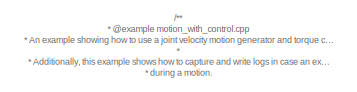
[diagram: root canvas - part 1/2, top center region]
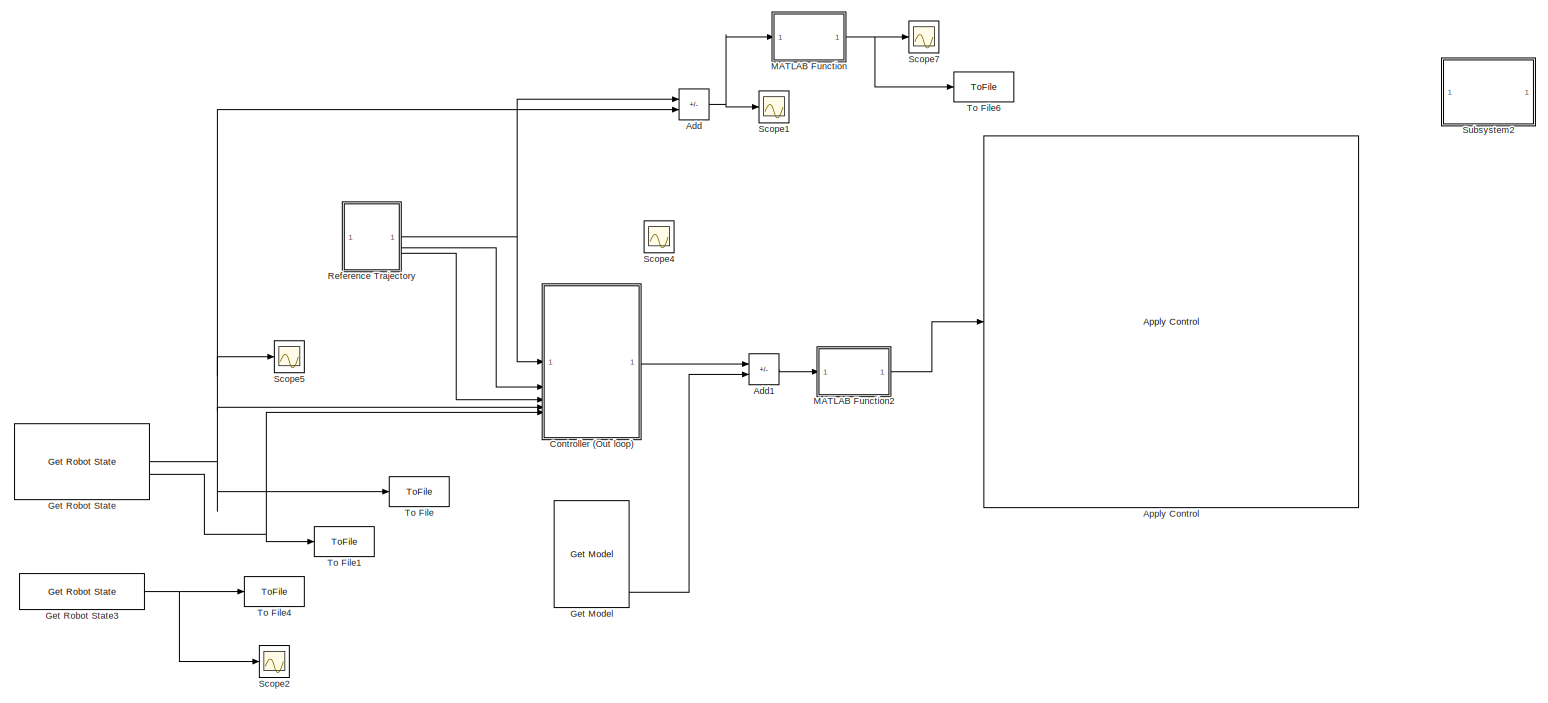
[diagram: root canvas - part 2/2, full width, middle band]
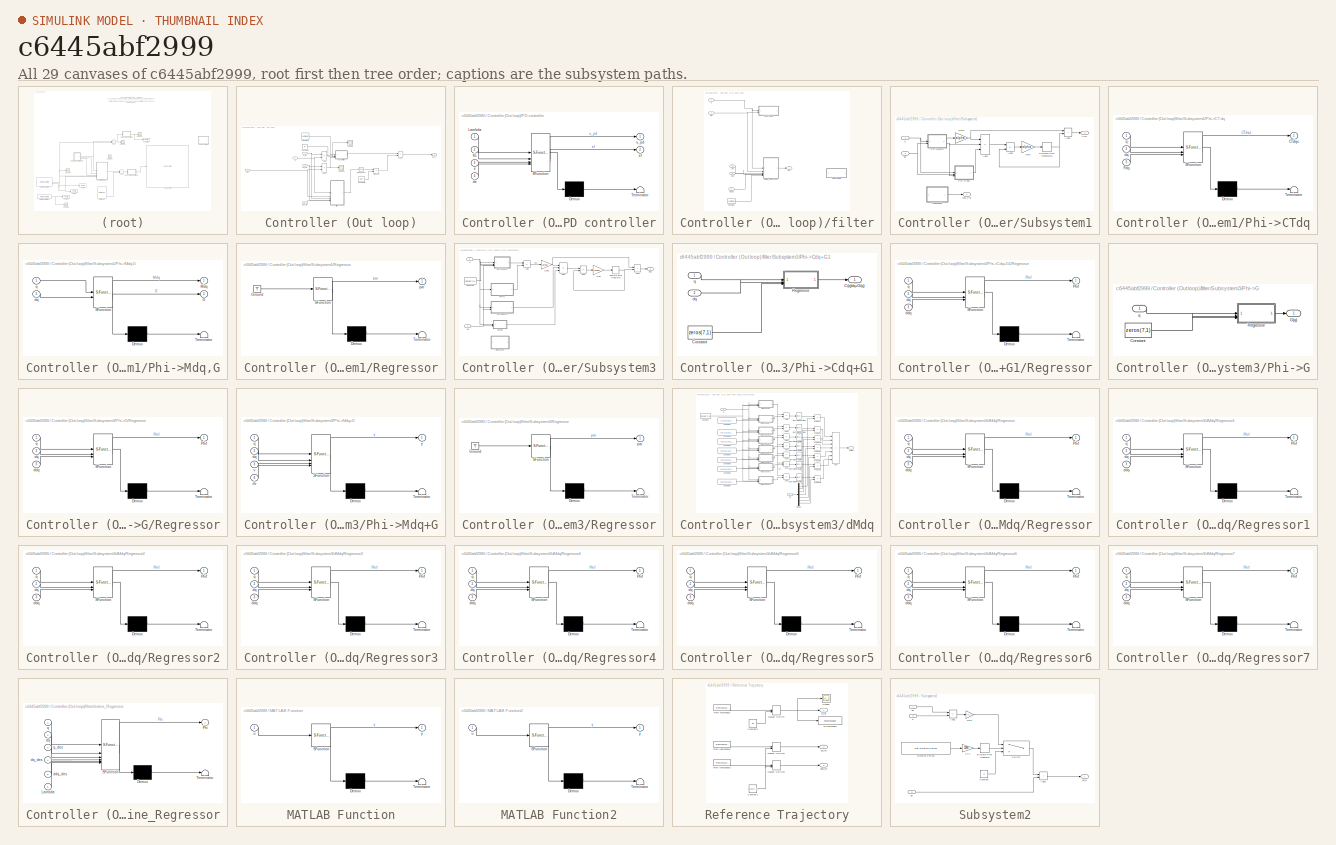
[diagram: thumbnail index - all 29 canvases of the model, root first then tree order]
MODEL mdl_c6445abf2999
KIND model
CONFIG AbsTol = auto
CONFIG EnableMultiTasking = on
CONFIG FixedStep = 0.001
CONFIG MaxStep = auto
CONFIG MinStep = auto
CONFIG PreLoadFcn = set_param(gcs, 'RTWSystemTargetFile', 'franka_emika_panda.tlc');\ndemos_common_configs();
CONFIG RelTol = 1e-3
CONFIG SampleTimeConstraint = Unconstrained
CONFIG SolverName = FixedStepDiscrete
CONFIG StartTime = 0.0
CONFIG StopTime = inf
BLOCK [Sum] Add
  IconShape = rectangular
  Inputs = +-
BLOCK [Sum] Add1
  IconShape = rectangular
  Inputs = +-
BLOCK [Reference] Apply Control  REF=franka_simulink_library/Apply Control
  SourceBlock = franka_simulink_library/Apply Control
  UserDataPersistent = on
BLOCK [SubSystem] Controller (Out loop)
BLOCK [Sum] Controller (Out loop)/Add
  IconShape = rectangular
  Inputs = +-
BLOCK [Sum] Controller (Out loop)/Add1
  IconShape = rectangular
  Inputs = +-
BLOCK [Sum] Controller (Out loop)/Add2
  IconShape = rectangular
BLOCK [Constant] Controller (Out loop)/Constant1
  Value = Lambda
BLOCK [Constant] Controller (Out loop)/Constant2
  Value = Kc
BLOCK [Constant] Controller (Out loop)/Constant3
  Value = par
BLOCK [SubSystem] Controller (Out loop)/PD controller
  ErrorFcn = Stateflow.Translate.translate
  PermitHierarchicalResolution = ExplicitOnly
  SFBlockType = MATLAB Function
  TreatAsAtomicUnit = on
BLOCK [Demux] Controller (Out loop)/PD controller/ Demux 
  Outputs = 1
BLOCK [S-Function] Controller (Out loop)/PD controller/ SFunction 
  EnableBusSupport = off
  FunctionName = sf_sfun
  PortCounts = [4 3]
  SFcnIsStateOwnerBlock = off
  SFunctionDeploymentMode = off
  Tag = Stateflow S-Function 1
BLOCK [Terminator] Controller (Out loop)/PD controller/ Terminator 
BLOCK [Inport] Controller (Out loop)/PD controller/Kc
  Port = 2
BLOCK [Inport] Controller (Out loop)/PD controller/Lambda
BLOCK [Inport] Controller (Out loop)/PD controller/de
  Port = 4
BLOCK [Inport] Controller (Out loop)/PD controller/e
  Port = 3
BLOCK [Outport] Controller (Out loop)/PD controller/ef
  Port = 2
BLOCK [Outport] Controller (Out loop)/PD controller/u_pd
BLOCK [Product] Controller (Out loop)/Product4
  Multiplication = Matrix(*)
BLOCK [Scope] Controller (Out loop)/Scope3
  Floating = off
  NumInputPorts = 1
  ScopeSpecificationString = Simulink.scopes.TimeScopeBlockCfg('CurrentConfiguration', extmgr.ConfigurationSet(extmgr.Configuration('Core','General UI',true),extmgr.Configuration('Core','Source UI',true),extmgr.Configuration('Sources','WiredSimulink',true,'DataLoggingVariableName','ScopeData8'),extmgr.Configuration('Visuals','Time Domain',true,'SerializedDisplays',{struct('MinYLimReal','-0.51521','MaxYLimReal','0.72811','YLab...<+1611ch>
BLOCK [Scope] Controller (Out loop)/Scope6
  Floating = off
  NumInputPorts = 1
  ScopeSpecificationString = Simulink.scopes.TimeScopeBlockCfg('CurrentConfiguration', extmgr.ConfigurationSet(extmgr.Configuration('Core','General UI',true),extmgr.Configuration('Core','Source UI',true),extmgr.Configuration('Sources','WiredSimulink',true,'DataLoggingVariableName','ScopeData7'),extmgr.Configuration('Visuals','Time Domain',true,'SerializedDisplays',{struct('MinYLimReal','-2.71875','MaxYLimReal','1.96875','YLab...<+1604ch>
BLOCK [Math] Controller (Out loop)/Transpose1
  Operator = transpose
BLOCK [Inport] Controller (Out loop)/ddq_ref
  Port = 3
BLOCK [Inport] Controller (Out loop)/dq
  Port = 5
BLOCK [Inport] Controller (Out loop)/dq_ref
  Port = 2
BLOCK [SubSystem] Controller (Out loop)/filter
BLOCK [Constant] Controller (Out loop)/filter/Constant
  Value = Lambda
BLOCK [Outport] Controller (Out loop)/filter/Phi
BLOCK [SubSystem] Controller (Out loop)/filter/Subsystem1
  Commented = on
BLOCK [Sum] Controller (Out loop)/filter/Subsystem1/Add2
  IconShape = rectangular
BLOCK [Sum] Controller (Out loop)/filter/Subsystem1/Add3
  IconShape = rectangular
  Inputs = ++-
BLOCK [Sum] Controller (Out loop)/filter/Subsystem1/Add4
  IconShape = rectangular
  Inputs = -+-
BLOCK [DiscreteIntegrator] Controller (Out loop)/filter/Subsystem1/Discrete-Time Integrator5
  ICPrevOutput = DiscIntNeverNeededParam
  ICPrevScaledInput = DiscIntNeverNeededParam
  InitialConditionSetting = Auto
  SampleTime = -1
BLOCK [Gain] Controller (Out loop)/filter/Subsystem1/Gain
  Gain = alpha
BLOCK [Gain] Controller (Out loop)/filter/Subsystem1/Gain1
  Gain = alpha
BLOCK [SubSystem] Controller (Out loop)/filter/Subsystem1/Phi->CTdq
  ErrorFcn = Stateflow.Translate.translate
  PermitHierarchicalResolution = ExplicitOnly
  SFBlockType = MATLAB Function
  TreatAsAtomicUnit = on
BLOCK [Demux] Controller (Out loop)/filter/Subsystem1/Phi->CTdq/ Demux 
  Outputs = 1
BLOCK [S-Function] Controller (Out loop)/filter/Subsystem1/Phi->CTdq/ SFunction 
  EnableBusSupport = off
  FunctionName = sf_sfun
  PortCounts = [3 2]
  SFcnIsStateOwnerBlock = off
  SFunctionDeploymentMode = off
  Tag = Stateflow S-Function 7
BLOCK [Terminator] Controller (Out loop)/filter/Subsystem1/Phi->CTdq/ Terminator 
BLOCK [Outport] Controller (Out loop)/filter/Subsystem1/Phi->CTdq/CTdqs
BLOCK [Inport] Controller (Out loop)/filter/Subsystem1/Phi->CTdq/Fdq
  Port = 3
BLOCK [Inport] Controller (Out loop)/filter/Subsystem1/Phi->CTdq/dq
  Port = 2
BLOCK [Inport] Controller (Out loop)/filter/Subsystem1/Phi->CTdq/q
BLOCK [SubSystem] Controller (Out loop)/filter/Subsystem1/Phi->Mdq,G
  ErrorFcn = Stateflow.Translate.translate
  PermitHierarchicalResolution = ExplicitOnly
  SFBlockType = MATLAB Function
  TreatAsAtomicUnit = on
BLOCK [Demux] Controller (Out loop)/filter/Subsystem1/Phi->Mdq,G/ Demux 
  Outputs = 1
BLOCK [S-Function] Controller (Out loop)/filter/Subsystem1/Phi->Mdq,G/ SFunction 
  EnableBusSupport = off
  FunctionName = sf_sfun
  PortCounts = [2 3]
  SFcnIsStateOwnerBlock = off
  SFunctionDeploymentMode = off
  Tag = Stateflow S-Function 8
BLOCK [Terminator] Controller (Out loop)/filter/Subsystem1/Phi->Mdq,G/ Terminator 
BLOCK [Outport] Controller (Out loop)/filter/Subsystem1/Phi->Mdq,G/G
  Port = 2
BLOCK [Outport] Controller (Out loop)/filter/Subsystem1/Phi->Mdq,G/Mdq
BLOCK [Inport] Controller (Out loop)/filter/Subsystem1/Phi->Mdq,G/dq
  Port = 2
BLOCK [Inport] Controller (Out loop)/filter/Subsystem1/Phi->Mdq,G/q
BLOCK [Outport] Controller (Out loop)/filter/Subsystem1/Phif
BLOCK [SubSystem] Controller (Out loop)/filter/Subsystem1/Regressor
  ErrorFcn = Stateflow.Translate.translate
  PermitHierarchicalResolution = ExplicitOnly
  SFBlockType = MATLAB Function
  TreatAsAtomicUnit = on
BLOCK [Demux] Controller (Out loop)/filter/Subsystem1/Regressor/ Demux 
  Outputs = 1
BLOCK [Ground] Controller (Out loop)/filter/Subsystem1/Regressor/ Ground 
BLOCK [S-Function] Controller (Out loop)/filter/Subsystem1/Regressor/ SFunction 
  EnableBusSupport = off
  FunctionName = sf_sfun
  PortCounts = [1 2]
  SFcnIsStateOwnerBlock = off
  SFunctionDeploymentMode = off
  Tag = Stateflow S-Function 10
BLOCK [Terminator] Controller (Out loop)/filter/Subsystem1/Regressor/ Terminator 
BLOCK [Outport] Controller (Out loop)/filter/Subsystem1/Regressor/par
BLOCK [Inport] Controller (Out loop)/filter/Subsystem1/dq
  Port = 2
BLOCK [Inport] Controller (Out loop)/filter/Subsystem1/q
BLOCK [Outport] Controller (Out loop)/filter/Subsystem1/real_Par
  Port = 2
BLOCK [SubSystem] Controller (Out loop)/filter/Subsystem3
  Commented = on
BLOCK [Sum] Controller (Out loop)/filter/Subsystem3/Add
  IconShape = rectangular
  Inputs = +-
BLOCK [Sum] Controller (Out loop)/filter/Subsystem3/Add1
  IconShape = rectangular
  Inputs = -+-
BLOCK [Sum] Controller (Out loop)/filter/Subsystem3/Add2
  IconShape = rectangular
BLOCK [Sum] Controller (Out loop)/filter/Subsystem3/Add3
  IconShape = rectangular
  Inputs = +-
BLOCK [Constant] Controller (Out loop)/filter/Subsystem3/Constant
  Value = zeros(7,1)
BLOCK [DiscreteIntegrator] Controller (Out loop)/filter/Subsystem3/Discrete-Time Integrator
  ICPrevOutput = DiscIntNeverNeededParam
  ICPrevScaledInput = DiscIntNeverNeededParam
  InitialConditionSetting = Auto
  SampleTime = Ts
BLOCK [Gain] Controller (Out loop)/filter/Subsystem3/Gain
  Gain = alpha
BLOCK [Gain] Controller (Out loop)/filter/Subsystem3/Gain2
  Gain = alpha
BLOCK [SubSystem] Controller (Out loop)/filter/Subsystem3/Phi->Cdq+G1
BLOCK [Outport] Controller (Out loop)/filter/Subsystem3/Phi->Cdq+G1/C(q)dq+G(q)
BLOCK [Constant] Controller (Out loop)/filter/Subsystem3/Phi->Cdq+G1/Constant
  Value = zeros(7,1)
BLOCK [SubSystem] Controller (Out loop)/filter/Subsystem3/Phi->Cdq+G1/Regressor
  ErrorFcn = Stateflow.Translate.translate
  PermitHierarchicalResolution = ExplicitOnly
  SFBlockType = MATLAB Function
  TreatAsAtomicUnit = on
BLOCK [Demux] Controller (Out loop)/filter/Subsystem3/Phi->Cdq+G1/Regressor/ Demux 
  Outputs = 1
BLOCK [S-Function] Controller (Out loop)/filter/Subsystem3/Phi->Cdq+G1/Regressor/ SFunction 
  EnableBusSupport = off
  FunctionName = sf_sfun
  PortCounts = [3 2]
  SFcnIsStateOwnerBlock = off
  SFunctionDeploymentMode = off
  Tag = Stateflow S-Function 41
BLOCK [Terminator] Controller (Out loop)/filter/Subsystem3/Phi->Cdq+G1/Regressor/ Terminator 
BLOCK [Outport] Controller (Out loop)/filter/Subsystem3/Phi->Cdq+G1/Regressor/Phif
BLOCK [Inport] Controller (Out loop)/filter/Subsystem3/Phi->Cdq+G1/Regressor/ddq
  Port = 3
BLOCK [Inport] Controller (Out loop)/filter/Subsystem3/Phi->Cdq+G1/Regressor/dq
  Port = 2
BLOCK [Inport] Controller (Out loop)/filter/Subsystem3/Phi->Cdq+G1/Regressor/q
BLOCK [Inport] Controller (Out loop)/filter/Subsystem3/Phi->Cdq+G1/dq
  Port = 2
BLOCK [Inport] Controller (Out loop)/filter/Subsystem3/Phi->Cdq+G1/q
BLOCK [SubSystem] Controller (Out loop)/filter/Subsystem3/Phi->G
BLOCK [Constant] Controller (Out loop)/filter/Subsystem3/Phi->G/Constant
  Value = zeros(7,1)
BLOCK [Outport] Controller (Out loop)/filter/Subsystem3/Phi->G/G(q)
BLOCK [SubSystem] Controller (Out loop)/filter/Subsystem3/Phi->G/Regressor
  ErrorFcn = Stateflow.Translate.translate
  PermitHierarchicalResolution = ExplicitOnly
  SFBlockType = MATLAB Function
  TreatAsAtomicUnit = on
BLOCK [Demux] Controller (Out loop)/filter/Subsystem3/Phi->G/Regressor/ Demux 
  Outputs = 1
BLOCK [S-Function] Controller (Out loop)/filter/Subsystem3/Phi->G/Regressor/ SFunction 
  EnableBusSupport = off
  FunctionName = sf_sfun
  PortCounts = [3 2]
  SFcnIsStateOwnerBlock = off
  SFunctionDeploymentMode = off
  Tag = Stateflow S-Function 42
BLOCK [Terminator] Controller (Out loop)/filter/Subsystem3/Phi->G/Regressor/ Terminator 
BLOCK [Outport] Controller (Out loop)/filter/Subsystem3/Phi->G/Regressor/Phif
BLOCK [Inport] Controller (Out loop)/filter/Subsystem3/Phi->G/Regressor/ddq
  Port = 3
BLOCK [Inport] Controller (Out loop)/filter/Subsystem3/Phi->G/Regressor/dq
  Port = 2
BLOCK [Inport] Controller (Out loop)/filter/Subsystem3/Phi->G/Regressor/q
BLOCK [Inport] Controller (Out loop)/filter/Subsystem3/Phi->G/q
BLOCK [SubSystem] Controller (Out loop)/filter/Subsystem3/Phi->Mdq+G
  ErrorFcn = Stateflow.Translate.translate
  PermitHierarchicalResolution = ExplicitOnly
  SFBlockType = MATLAB Function
  TreatAsAtomicUnit = on
BLOCK [Demux] Controller (Out loop)/filter/Subsystem3/Phi->Mdq+G/ Demux 
  Outputs = 1
BLOCK [S-Function] Controller (Out loop)/filter/Subsystem3/Phi->Mdq+G/ SFunction 
  EnableBusSupport = off
  FunctionName = sf_sfun
  PortCounts = [4 2]
  SFcnIsStateOwnerBlock = off
  SFunctionDeploymentMode = off
  Tag = Stateflow S-Function 71
BLOCK [Terminator] Controller (Out loop)/filter/Subsystem3/Phi->Mdq+G/ Terminator 
BLOCK [Inport] Controller (Out loop)/filter/Subsystem3/Phi->Mdq+G/dq
  Port = 2
BLOCK [Inport] Controller (Out loop)/filter/Subsystem3/Phi->Mdq+G/dv
  Port = 4
BLOCK [Inport] Controller (Out loop)/filter/Subsystem3/Phi->Mdq+G/q
BLOCK [Inport] Controller (Out loop)/filter/Subsystem3/Phi->Mdq+G/v
  Port = 3
BLOCK [Outport] Controller (Out loop)/filter/Subsystem3/Phi->Mdq+G/y
BLOCK [Outport] Controller (Out loop)/filter/Subsystem3/Phif
BLOCK [SubSystem] Controller (Out loop)/filter/Subsystem3/Regressor
  Commented = on
  ErrorFcn = Stateflow.Translate.translate
  PermitHierarchicalResolution = ExplicitOnly
  SFBlockType = MATLAB Function
  TreatAsAtomicUnit = on
BLOCK [Demux] Controller (Out loop)/filter/Subsystem3/Regressor/ Demux 
  Outputs = 1
BLOCK [Ground] Controller (Out loop)/filter/Subsystem3/Regressor/ Ground 
BLOCK [S-Function] Controller (Out loop)/filter/Subsystem3/Regressor/ SFunction 
  EnableBusSupport = off
  FunctionName = sf_sfun
  PortCounts = [1 2]
  SFcnIsStateOwnerBlock = off
  SFunctionDeploymentMode = off
  Tag = Stateflow S-Function 47
BLOCK [Terminator] Controller (Out loop)/filter/Subsystem3/Regressor/ Terminator 
BLOCK [Outport] Controller (Out loop)/filter/Subsystem3/Regressor/par
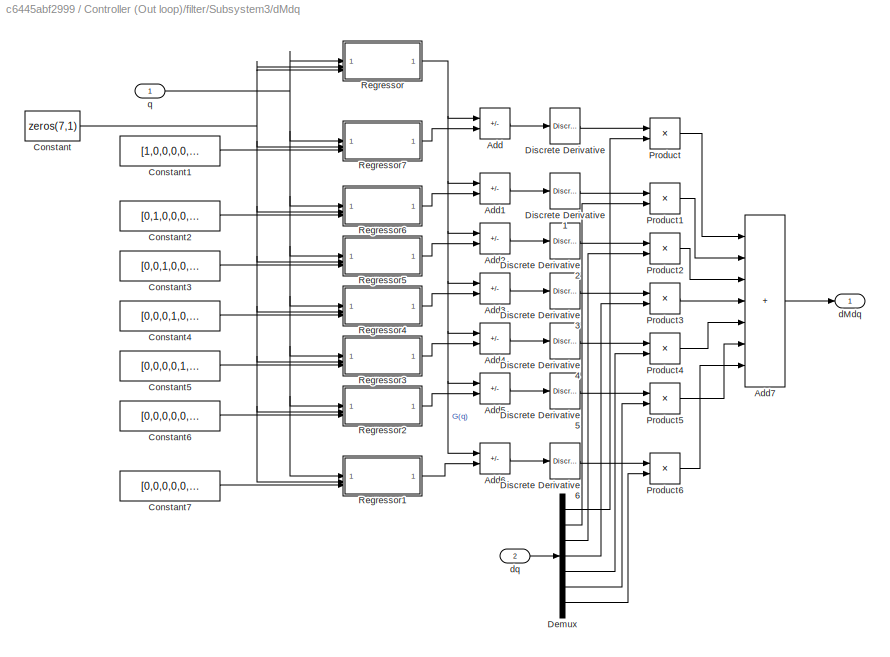
BLOCK [SubSystem] Controller (Out loop)/filter/Subsystem3/dMdq
BLOCK [Sum] Controller (Out loop)/filter/Subsystem3/dMdq/Add
  IconShape = rectangular
  Inputs = -+
BLOCK [Sum] Controller (Out loop)/filter/Subsystem3/dMdq/Add1
  IconShape = rectangular
  Inputs = -+
BLOCK [Sum] Controller (Out loop)/filter/Subsystem3/dMdq/Add2
  IconShape = rectangular
  Inputs = -+
BLOCK [Sum] Controller (Out loop)/filter/Subsystem3/dMdq/Add3
  IconShape = rectangular
  Inputs = -+
BLOCK [Sum] Controller (Out loop)/filter/Subsystem3/dMdq/Add4
  IconShape = rectangular
  Inputs = -+
BLOCK [Sum] Controller (Out loop)/filter/Subsystem3/dMdq/Add5
  IconShape = rectangular
  Inputs = -+
BLOCK [Sum] Controller (Out loop)/filter/Subsystem3/dMdq/Add6
  IconShape = rectangular
  Inputs = -+
BLOCK [Sum] Controller (Out loop)/filter/Subsystem3/dMdq/Add7
  IconShape = rectangular
  Inputs = +++++++
BLOCK [Constant] Controller (Out loop)/filter/Subsystem3/dMdq/Constant
  Value = zeros(7,1)
BLOCK [Constant] Controller (Out loop)/filter/Subsystem3/dMdq/Constant1
  Value = [1,0,0,0,0,0,0]'
BLOCK [Constant] Controller (Out loop)/filter/Subsystem3/dMdq/Constant2
  Value = [0,1,0,0,0,0,0]'
BLOCK [Constant] Controller (Out loop)/filter/Subsystem3/dMdq/Constant3
  Value = [0,0,1,0,0,0,0]'
BLOCK [Constant] Controller (Out loop)/filter/Subsystem3/dMdq/Constant4
  Value = [0,0,0,1,0,0,0]'
BLOCK [Constant] Controller (Out loop)/filter/Subsystem3/dMdq/Constant5
  Value = [0,0,0,0,1,0,0]'
BLOCK [Constant] Controller (Out loop)/filter/Subsystem3/dMdq/Constant6
  Value = [0,0,0,0,0,1,0]'
BLOCK [Constant] Controller (Out loop)/filter/Subsystem3/dMdq/Constant7
  Value = [0,0,0,0,0,0,1]'
BLOCK [Demux] Controller (Out loop)/filter/Subsystem3/dMdq/Demux
  Outputs = 7
BLOCK [Reference] Controller (Out loop)/filter/Subsystem3/dMdq/Discrete Derivative  REF=simulink/Discrete/Discrete Derivative
  SourceBlock = simulink/Discrete/Discrete Derivative
  SourceType = Discrete Derivative
BLOCK [Reference] Controller (Out loop)/filter/Subsystem3/dMdq/Discrete Derivative1  REF=simulink/Discrete/Discrete Derivative
  SourceBlock = simulink/Discrete/Discrete Derivative
  SourceType = Discrete Derivative
BLOCK [Reference] Controller (Out loop)/filter/Subsystem3/dMdq/Discrete Derivative2  REF=simulink/Discrete/Discrete Derivative
  SourceBlock = simulink/Discrete/Discrete Derivative
  SourceType = Discrete Derivative
BLOCK [Reference] Controller (Out loop)/filter/Subsystem3/dMdq/Discrete Derivative3  REF=simulink/Discrete/Discrete Derivative
  SourceBlock = simulink/Discrete/Discrete Derivative
  SourceType = Discrete Derivative
BLOCK [Reference] Controller (Out loop)/filter/Subsystem3/dMdq/Discrete Derivative4  REF=simulink/Discrete/Discrete Derivative
  SourceBlock = simulink/Discrete/Discrete Derivative
  SourceType = Discrete Derivative
BLOCK [Reference] Controller (Out loop)/filter/Subsystem3/dMdq/Discrete Derivative5  REF=simulink/Discrete/Discrete Derivative
  SourceBlock = simulink/Discrete/Discrete Derivative
  SourceType = Discrete Derivative
BLOCK [Reference] Controller (Out loop)/filter/Subsystem3/dMdq/Discrete Derivative6  REF=simulink/Discrete/Discrete Derivative
  SourceBlock = simulink/Discrete/Discrete Derivative
  SourceType = Discrete Derivative
BLOCK [Product] Controller (Out loop)/filter/Subsystem3/dMdq/Product
BLOCK [Product] Controller (Out loop)/filter/Subsystem3/dMdq/Product1
BLOCK [Product] Controller (Out loop)/filter/Subsystem3/dMdq/Product2
BLOCK [Product] Controller (Out loop)/filter/Subsystem3/dMdq/Product3
BLOCK [Product] Controller (Out loop)/filter/Subsystem3/dMdq/Product4
BLOCK [Product] Controller (Out loop)/filter/Subsystem3/dMdq/Product5
BLOCK [Product] Controller (Out loop)/filter/Subsystem3/dMdq/Product6
BLOCK [SubSystem] Controller (Out loop)/filter/Subsystem3/dMdq/Regressor
  ErrorFcn = Stateflow.Translate.translate
  PermitHierarchicalResolution = ExplicitOnly
  SFBlockType = MATLAB Function
  TreatAsAtomicUnit = on
BLOCK [Demux] Controller (Out loop)/filter/Subsystem3/dMdq/Regressor/ Demux 
  Outputs = 1
BLOCK [S-Function] Controller (Out loop)/filter/Subsystem3/dMdq/Regressor/ SFunction 
  EnableBusSupport = off
  FunctionName = sf_sfun
  PortCounts = [3 2]
  SFcnIsStateOwnerBlock = off
  SFunctionDeploymentMode = off
  Tag = Stateflow S-Function 63
BLOCK [Terminator] Controller (Out loop)/filter/Subsystem3/dMdq/Regressor/ Terminator 
BLOCK [Outport] Controller (Out loop)/filter/Subsystem3/dMdq/Regressor/Phif
BLOCK [Inport] Controller (Out loop)/filter/Subsystem3/dMdq/Regressor/ddq
  Port = 3
BLOCK [Inport] Controller (Out loop)/filter/Subsystem3/dMdq/Regressor/dq
  Port = 2
BLOCK [Inport] Controller (Out loop)/filter/Subsystem3/dMdq/Regressor/q
BLOCK [SubSystem] Controller (Out loop)/filter/Subsystem3/dMdq/Regressor1
  ErrorFcn = Stateflow.Translate.translate
  PermitHierarchicalResolution = ExplicitOnly
  SFBlockType = MATLAB Function
  TreatAsAtomicUnit = on
BLOCK [Demux] Controller (Out loop)/filter/Subsystem3/dMdq/Regressor1/ Demux 
  Outputs = 1
BLOCK [S-Function] Controller (Out loop)/filter/Subsystem3/dMdq/Regressor1/ SFunction 
  EnableBusSupport = off
  FunctionName = sf_sfun
  PortCounts = [3 2]
  SFcnIsStateOwnerBlock = off
  SFunctionDeploymentMode = off
  Tag = Stateflow S-Function 43
BLOCK [Terminator] Controller (Out loop)/filter/Subsystem3/dMdq/Regressor1/ Terminator 
BLOCK [Outport] Controller (Out loop)/filter/Subsystem3/dMdq/Regressor1/Phif
BLOCK [Inport] Controller (Out loop)/filter/Subsystem3/dMdq/Regressor1/ddq
  Port = 3
BLOCK [Inport] Controller (Out loop)/filter/Subsystem3/dMdq/Regressor1/dq
  Port = 2
BLOCK [Inport] Controller (Out loop)/filter/Subsystem3/dMdq/Regressor1/q
BLOCK [SubSystem] Controller (Out loop)/filter/Subsystem3/dMdq/Regressor2
  ErrorFcn = Stateflow.Translate.translate
  PermitHierarchicalResolution = ExplicitOnly
  SFBlockType = MATLAB Function
  TreatAsAtomicUnit = on
BLOCK [Demux] Controller (Out loop)/filter/Subsystem3/dMdq/Regressor2/ Demux 
  Outputs = 1
BLOCK [S-Function] Controller (Out loop)/filter/Subsystem3/dMdq/Regressor2/ SFunction 
  EnableBusSupport = off
  FunctionName = sf_sfun
  PortCounts = [3 2]
  SFcnIsStateOwnerBlock = off
  SFunctionDeploymentMode = off
  Tag = Stateflow S-Function 44
BLOCK [Terminator] Controller (Out loop)/filter/Subsystem3/dMdq/Regressor2/ Terminator 
BLOCK [Outport] Controller (Out loop)/filter/Subsystem3/dMdq/Regressor2/Phif
BLOCK [Inport] Controller (Out loop)/filter/Subsystem3/dMdq/Regressor2/ddq
  Port = 3
BLOCK [Inport] Controller (Out loop)/filter/Subsystem3/dMdq/Regressor2/dq
  Port = 2
BLOCK [Inport] Controller (Out loop)/filter/Subsystem3/dMdq/Regressor2/q
BLOCK [SubSystem] Controller (Out loop)/filter/Subsystem3/dMdq/Regressor3
  ErrorFcn = Stateflow.Translate.translate
  PermitHierarchicalResolution = ExplicitOnly
  SFBlockType = MATLAB Function
  TreatAsAtomicUnit = on
BLOCK [Demux] Controller (Out loop)/filter/Subsystem3/dMdq/Regressor3/ Demux 
  Outputs = 1
BLOCK [S-Function] Controller (Out loop)/filter/Subsystem3/dMdq/Regressor3/ SFunction 
  EnableBusSupport = off
  FunctionName = sf_sfun
  PortCounts = [3 2]
  SFcnIsStateOwnerBlock = off
  SFunctionDeploymentMode = off
  Tag = Stateflow S-Function 45
BLOCK [Terminator] Controller (Out loop)/filter/Subsystem3/dMdq/Regressor3/ Terminator 
BLOCK [Outport] Controller (Out loop)/filter/Subsystem3/dMdq/Regressor3/Phif
BLOCK [Inport] Controller (Out loop)/filter/Subsystem3/dMdq/Regressor3/ddq
  Port = 3
BLOCK [Inport] Controller (Out loop)/filter/Subsystem3/dMdq/Regressor3/dq
  Port = 2
BLOCK [Inport] Controller (Out loop)/filter/Subsystem3/dMdq/Regressor3/q
BLOCK [SubSystem] Controller (Out loop)/filter/Subsystem3/dMdq/Regressor4
  ErrorFcn = Stateflow.Translate.translate
  PermitHierarchicalResolution = ExplicitOnly
  SFBlockType = MATLAB Function
  TreatAsAtomicUnit = on
BLOCK [Demux] Controller (Out loop)/filter/Subsystem3/dMdq/Regressor4/ Demux 
  Outputs = 1
BLOCK [S-Function] Controller (Out loop)/filter/Subsystem3/dMdq/Regressor4/ SFunction 
  EnableBusSupport = off
  FunctionName = sf_sfun
  PortCounts = [3 2]
  SFcnIsStateOwnerBlock = off
  SFunctionDeploymentMode = off
  Tag = Stateflow S-Function 46
BLOCK [Terminator] Controller (Out loop)/filter/Subsystem3/dMdq/Regressor4/ Terminator 
BLOCK [Outport] Controller (Out loop)/filter/Subsystem3/dMdq/Regressor4/Phif
BLOCK [Inport] Controller (Out loop)/filter/Subsystem3/dMdq/Regressor4/ddq
  Port = 3
BLOCK [Inport] Controller (Out loop)/filter/Subsystem3/dMdq/Regressor4/dq
  Port = 2
BLOCK [Inport] Controller (Out loop)/filter/Subsystem3/dMdq/Regressor4/q
BLOCK [SubSystem] Controller (Out loop)/filter/Subsystem3/dMdq/Regressor5
  ErrorFcn = Stateflow.Translate.translate
  PermitHierarchicalResolution = ExplicitOnly
  SFBlockType = MATLAB Function
  TreatAsAtomicUnit = on
BLOCK [Demux] Controller (Out loop)/filter/Subsystem3/dMdq/Regressor5/ Demux 
  Outputs = 1
BLOCK [S-Function] Controller (Out loop)/filter/Subsystem3/dMdq/Regressor5/ SFunction 
  EnableBusSupport = off
  FunctionName = sf_sfun
  PortCounts = [3 2]
  SFcnIsStateOwnerBlock = off
  SFunctionDeploymentMode = off
  Tag = Stateflow S-Function 64
BLOCK [Terminator] Controller (Out loop)/filter/Subsystem3/dMdq/Regressor5/ Terminator 
BLOCK [Outport] Controller (Out loop)/filter/Subsystem3/dMdq/Regressor5/Phif
BLOCK [Inport] Controller (Out loop)/filter/Subsystem3/dMdq/Regressor5/ddq
  Port = 3
BLOCK [Inport] Controller (Out loop)/filter/Subsystem3/dMdq/Regressor5/dq
  Port = 2
BLOCK [Inport] Controller (Out loop)/filter/Subsystem3/dMdq/Regressor5/q
BLOCK [SubSystem] Controller (Out loop)/filter/Subsystem3/dMdq/Regressor6
  ErrorFcn = Stateflow.Translate.translate
  PermitHierarchicalResolution = ExplicitOnly
  SFBlockType = MATLAB Function
  TreatAsAtomicUnit = on
BLOCK [Demux] Controller (Out loop)/filter/Subsystem3/dMdq/Regressor6/ Demux 
  Outputs = 1
BLOCK [S-Function] Controller (Out loop)/filter/Subsystem3/dMdq/Regressor6/ SFunction 
  EnableBusSupport = off
  FunctionName = sf_sfun
  PortCounts = [3 2]
  SFcnIsStateOwnerBlock = off
  SFunctionDeploymentMode = off
  Tag = Stateflow S-Function 65
BLOCK [Terminator] Controller (Out loop)/filter/Subsystem3/dMdq/Regressor6/ Terminator 
BLOCK [Outport] Controller (Out loop)/filter/Subsystem3/dMdq/Regressor6/Phif
BLOCK [Inport] Controller (Out loop)/filter/Subsystem3/dMdq/Regressor6/ddq
  Port = 3
BLOCK [Inport] Controller (Out loop)/filter/Subsystem3/dMdq/Regressor6/dq
  Port = 2
BLOCK [Inport] Controller (Out loop)/filter/Subsystem3/dMdq/Regressor6/q
BLOCK [SubSystem] Controller (Out loop)/filter/Subsystem3/dMdq/Regressor7
  ErrorFcn = Stateflow.Translate.translate
  PermitHierarchicalResolution = ExplicitOnly
  SFBlockType = MATLAB Function
  TreatAsAtomicUnit = on
BLOCK [Demux] Controller (Out loop)/filter/Subsystem3/dMdq/Regressor7/ Demux 
  Outputs = 1
BLOCK [S-Function] Controller (Out loop)/filter/Subsystem3/dMdq/Regressor7/ SFunction 
  EnableBusSupport = off
  FunctionName = sf_sfun
  PortCounts = [3 2]
  SFcnIsStateOwnerBlock = off
  SFunctionDeploymentMode = off
  Tag = Stateflow S-Function 66
BLOCK [Terminator] Controller (Out loop)/filter/Subsystem3/dMdq/Regressor7/ Terminator 
BLOCK [Outport] Controller (Out loop)/filter/Subsystem3/dMdq/Regressor7/Phif
BLOCK [Inport] Controller (Out loop)/filter/Subsystem3/dMdq/Regressor7/ddq
  Port = 3
BLOCK [Inport] Controller (Out loop)/filter/Subsystem3/dMdq/Regressor7/dq
  Port = 2
BLOCK [Inport] Controller (Out loop)/filter/Subsystem3/dMdq/Regressor7/q
BLOCK [Outport] Controller (Out loop)/filter/Subsystem3/dMdq/dMdq
BLOCK [Inport] Controller (Out loop)/filter/Subsystem3/dMdq/dq
  Port = 2
BLOCK [Inport] Controller (Out loop)/filter/Subsystem3/dMdq/q
BLOCK [Inport] Controller (Out loop)/filter/Subsystem3/dq
  Port = 2
BLOCK [Inport] Controller (Out loop)/filter/Subsystem3/q
BLOCK [Inport] Controller (Out loop)/filter/ddqd
  Port = 5
BLOCK [Inport] Controller (Out loop)/filter/dq
  Port = 2
BLOCK [Inport] Controller (Out loop)/filter/dqd
  Port = 4
BLOCK [Inport] Controller (Out loop)/filter/q
BLOCK [Inport] Controller (Out loop)/filter/qd
  Port = 3
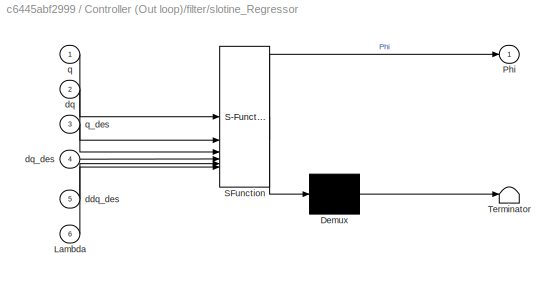
BLOCK [SubSystem] Controller (Out loop)/filter/slotine_Regressor
  ErrorFcn = Stateflow.Translate.translate
  PermitHierarchicalResolution = ExplicitOnly
  SFBlockType = MATLAB Function
  TreatAsAtomicUnit = on
BLOCK [Demux] Controller (Out loop)/filter/slotine_Regressor/ Demux 
  Outputs = 1
BLOCK [S-Function] Controller (Out loop)/filter/slotine_Regressor/ SFunction 
  EnableBusSupport = off
  FunctionName = sf_sfun
  PortCounts = [6 2]
  SFcnIsStateOwnerBlock = off
  SFunctionDeploymentMode = off
  Tag = Stateflow S-Function 6
BLOCK [Terminator] Controller (Out loop)/filter/slotine_Regressor/ Terminator 
BLOCK [Inport] Controller (Out loop)/filter/slotine_Regressor/Lambda
  Port = 6
BLOCK [Outport] Controller (Out loop)/filter/slotine_Regressor/Phi
BLOCK [Inport] Controller (Out loop)/filter/slotine_Regressor/ddq_des
  Port = 5
BLOCK [Inport] Controller (Out loop)/filter/slotine_Regressor/dq
  Port = 2
BLOCK [Inport] Controller (Out loop)/filter/slotine_Regressor/dq_des
  Port = 4
BLOCK [Inport] Controller (Out loop)/filter/slotine_Regressor/q
BLOCK [Inport] Controller (Out loop)/filter/slotine_Regressor/q_des
  Port = 3
BLOCK [Inport] Controller (Out loop)/q
  Port = 4
BLOCK [Inport] Controller (Out loop)/q_ref
BLOCK [Outport] Controller (Out loop)/tau_r
BLOCK [Reference] Get Model  REF=franka_simulink_library/Get Model
  SourceBlock = franka_simulink_library/Get Model
BLOCK [Reference] Get Robot State  REF=franka_simulink_library/Get Robot State
  SourceBlock = franka_simulink_library/Get Robot State
BLOCK [Reference] Get Robot State3  REF=franka_simulink_library/Get Robot State
  SourceBlock = franka_simulink_library/Get Robot State
BLOCK [SubSystem] MATLAB Function
  ErrorFcn = Stateflow.Translate.translate
  PermitHierarchicalResolution = ExplicitOnly
  SFBlockType = MATLAB Function
  TreatAsAtomicUnit = on
BLOCK [Demux] MATLAB Function/ Demux 
  Outputs = 1
BLOCK [S-Function] MATLAB Function/ SFunction 
  EnableBusSupport = off
  FunctionName = sf_sfun
  PortCounts = [1 2]
  SFcnIsStateOwnerBlock = off
  SFunctionDeploymentMode = off
  Tag = Stateflow S-Function 2
BLOCK [Terminator] MATLAB Function/ Terminator 
BLOCK [Inport] MATLAB Function/u
BLOCK [Outport] MATLAB Function/y
BLOCK [SubSystem] MATLAB Function2
  ErrorFcn = Stateflow.Translate.translate
  PermitHierarchicalResolution = ExplicitOnly
  SFBlockType = MATLAB Function
  TreatAsAtomicUnit = on
BLOCK [Demux] MATLAB Function2/ Demux 
  Outputs = 1
BLOCK [S-Function] MATLAB Function2/ SFunction 
  EnableBusSupport = off
  FunctionName = sf_sfun
  PortCounts = [1 2]
  SFcnIsStateOwnerBlock = off
  SFunctionDeploymentMode = off
  Tag = Stateflow S-Function 4
BLOCK [Terminator] MATLAB Function2/ Terminator 
BLOCK [Inport] MATLAB Function2/u
BLOCK [Outport] MATLAB Function2/y
BLOCK [SubSystem] Reference Trajectory
BLOCK [Constant] Reference Trajectory/Constant1
  Value = zeros(7,1)
BLOCK [Constant] Reference Trajectory/Constant2
  Value = q0
BLOCK [FromWorkspace] Reference Trajectory/From Workspace
  VariableName = traj.qd
BLOCK [FromWorkspace] Reference Trajectory/From Workspace1
  VariableName = traj.dqd
BLOCK [FromWorkspace] Reference Trajectory/From Workspace2
  VariableName = traj.ddqd
BLOCK [ManualSwitch] Reference Trajectory/Manual Switch
BLOCK [ManualSwitch] Reference Trajectory/Manual Switch1
BLOCK [ManualSwitch] Reference Trajectory/Manual Switch2
BLOCK [Scope] Reference Trajectory/Scope2
  Floating = off
  NumInputPorts = 1
  ScopeSpecificationString = Simulink.scopes.TimeScopeBlockCfg('CurrentConfiguration', extmgr.ConfigurationSet(extmgr.Configuration('Core','General UI',true),extmgr.Configuration('Core','Source UI',true),extmgr.Configuration('Sources','WiredSimulink',true,'DataLoggingVariableName','ScopeData1'),extmgr.Configuration('Visuals','Time Domain',true,'SerializedDisplays',{struct('MinYLimReal','-4.38608','MaxYLimReal','4.40486','YLab...<+1675ch>
BLOCK [ToWorkspace] Reference Trajectory/To Workspace
  Commented = on
  FixptAsFi = on
  MaxDataPoints = inf
  SampleTime = -1
  SaveFormat = Timeseries
  VariableName = q_ref
BLOCK [Outport] Reference Trajectory/ddq_ref
  Port = 3
BLOCK [Outport] Reference Trajectory/dq_ref
  Port = 2
BLOCK [Outport] Reference Trajectory/q_ref
BLOCK [Scope] Scope1
  Floating = off
  NumInputPorts = 1
  ScopeSpecificationString = Simulink.scopes.TimeScopeBlockCfg('CurrentConfiguration', extmgr.ConfigurationSet(extmgr.Configuration('Core','General UI',true),extmgr.Configuration('Core','Source UI',true),extmgr.Configuration('Sources','WiredSimulink',true,'DataLoggingVariableName','ScopeData1','DataLoggingSaveFormat','StructureWithTime','DataLoggingMaxPoints','25000'),extmgr.Configuration('Visuals','Time Domain',true,'Seriali...<+1560ch>
BLOCK [Scope] Scope2
  Floating = off
  NumInputPorts = 1
  ScopeSpecificationString = Simulink.scopes.TimeScopeBlockCfg('CurrentConfiguration', extmgr.ConfigurationSet(extmgr.Configuration('Core','General UI',true),extmgr.Configuration('Core','Source UI',true),extmgr.Configuration('Sources','WiredSimulink',true,'DataLoggingVariableName','ScopeData2','DataLoggingSaveFormat','StructureWithTime','DataLoggingMaxPoints','25000'),extmgr.Configuration('Visuals','Time Domain',true,'Seriali...<+1657ch>
BLOCK [Scope] Scope4
  Floating = off
  NumInputPorts = 1
  ScopeSpecificationString = Simulink.scopes.TimeScopeBlockCfg('CurrentConfiguration', extmgr.ConfigurationSet(extmgr.Configuration('Core','General UI',true),extmgr.Configuration('Core','Source UI',true),extmgr.Configuration('Sources','WiredSimulink',true,'DataLoggingVariableName','ScopeData3','DataLoggingSaveFormat','StructureWithTime','DataLoggingMaxPoints','25000'),extmgr.Configuration('Visuals','Time Domain',true,'Seriali...<+1707ch>
BLOCK [Scope] Scope5
  Floating = off
  NumInputPorts = 1
  ScopeSpecificationString = Simulink.scopes.TimeScopeBlockCfg('CurrentConfiguration', extmgr.ConfigurationSet(extmgr.Configuration('Core','General UI',true),extmgr.Configuration('Core','Source UI',true),extmgr.Configuration('Sources','WiredSimulink',true,'DataLoggingVariableName','ScopeData4','DataLoggingSaveFormat','StructureWithTime','DataLoggingMaxPoints','25000'),extmgr.Configuration('Visuals','Time Domain',true,'Seriali...<+1654ch>
BLOCK [Scope] Scope7
  Floating = off
  NumInputPorts = 1
  ScopeSpecificationString = Simulink.scopes.TimeScopeBlockCfg('CurrentConfiguration', extmgr.ConfigurationSet(extmgr.Configuration('Core','General UI',true),extmgr.Configuration('Core','Source UI',true),extmgr.Configuration('Sources','WiredSimulink',true,'DataLoggingVariableName','ScopeData5','DataLoggingSaveFormat','StructureWithTime','DataLoggingMaxPoints','25000'),extmgr.Configuration('Visuals','Time Domain',true,'Seriali...<+1514ch>
BLOCK [SubSystem] Subsystem2
  Commented = on
BLOCK [Sum] Subsystem2/Add1
  IconShape = rectangular
  Inputs = +-
BLOCK [Sum] Subsystem2/Add2
  IconShape = rectangular
BLOCK [Constant] Subsystem2/Constant
  Value = 0
BLOCK [DiscreteIntegrator] Subsystem2/Discrete-Time Integrator
  ICPrevOutput = DiscIntNeverNeededParam
  ICPrevScaledInput = DiscIntNeverNeededParam
  SampleTime = -1
BLOCK [Reference] Subsystem2/Duration Period  REF=franka_simulink_library/Get Duration Period
  SourceBlock = franka_simulink_library/Get Duration Period
BLOCK [Gain] Subsystem2/Gain
  Gain = 0.2
BLOCK [Gain] Subsystem2/KP1
  Gain = 1000
BLOCK [Switch] Subsystem2/Switch
  Criteria = u2 > Threshold
  InputSameDT = off
  SaturateOnIntegerOverflow = off
  Threshold = 0.05
BLOCK [Inport] Subsystem2/dq
  Port = 3
BLOCK [Outport] Subsystem2/dq_d
BLOCK [Inport] Subsystem2/q
  Port = 2
BLOCK [Inport] Subsystem2/qd
BLOCK [ToFile] To File
  Filename = q.mat
  MatrixName = q
BLOCK [ToFile] To File1
  Filename = dq.mat
  MatrixName = dq
BLOCK [ToFile] To File4
  Filename = tau_a.mat
  MatrixName = tau_a
BLOCK [ToFile] To File6
  Filename = err_norm.mat
  MatrixName = err_norm
ANNOTATION (root): /** * @example motion_with_control.cpp * An example showing how to use a joint velocity motion generator and torque control. * * Additionally, this example shows how to capture and write logs in case an exception is thrown * during a motion. * * @warning Before executing this example, make sure there is enough space in front of the robot. */
LINE Add1:1 -> MATLAB Function2:1
NET Add:1 -> MATLAB Function:1, Scope1:1
NET Controller (Out loop)/Add1:1 -> Controller (Out loop)/PD controller:4, Controller (Out loop)/Scope3:1
LINE Controller (Out loop)/Add2:1 -> Controller (Out loop)/tau_r:1
NET Controller (Out loop)/Add:1 -> Controller (Out loop)/PD controller:3, Controller (Out loop)/Scope6:1
LINE Controller (Out loop)/Constant1:1 -> Controller (Out loop)/PD controller:1
LINE Controller (Out loop)/Constant2:1 -> Controller (Out loop)/PD controller:2
LINE Controller (Out loop)/Constant3:1 -> Controller (Out loop)/Product4:2
LINE Controller (Out loop)/PD controller:1 -> Controller (Out loop)/Add2:1
LINE Controller (Out loop)/Product4:1 -> Controller (Out loop)/Add2:2
LINE Controller (Out loop)/Transpose1:1 -> Controller (Out loop)/Product4:1
LINE Controller (Out loop)/ddq_ref:1 -> Controller (Out loop)/filter:5
NET Controller (Out loop)/dq:1 -> Controller (Out loop)/Add1:2, Controller (Out loop)/filter:2
NET Controller (Out loop)/dq_ref:1 -> Controller (Out loop)/Add1:1, Controller (Out loop)/filter:4
LINE Controller (Out loop)/filter/Constant:1 -> Controller (Out loop)/filter/slotine_Regressor:6
LINE Controller (Out loop)/filter/Subsystem1/Add2:1 -> Controller (Out loop)/filter/Subsystem1/Phif:1
LINE Controller (Out loop)/filter/Subsystem1/Add3:1 -> Controller (Out loop)/filter/Subsystem1/Gain:1
LINE Controller (Out loop)/filter/Subsystem1/Add4:1 -> Controller (Out loop)/filter/Subsystem1/Add3:1
NET Controller (Out loop)/filter/Subsystem1/Discrete-Time Integrator5:1 -> Controller (Out loop)/filter/Subsystem1/Add2:2, Controller (Out loop)/filter/Subsystem1/Add3:3
NET Controller (Out loop)/filter/Subsystem1/Gain1:1 -> Controller (Out loop)/filter/Subsystem1/Add2:1, Controller (Out loop)/filter/Subsystem1/Add4:1
LINE Controller (Out loop)/filter/Subsystem1/Gain:1 -> Controller (Out loop)/filter/Subsystem1/Discrete-Time Integrator5:1
LINE Controller (Out loop)/filter/Subsystem1/Phi->CTdq:1 -> Controller (Out loop)/filter/Subsystem1/Add4:3
LINE Controller (Out loop)/filter/Subsystem1/Phi->Mdq,G:1 -> Controller (Out loop)/filter/Subsystem1/Gain1:1
NET Controller (Out loop)/filter/Subsystem1/Phi->Mdq,G:2 -> Controller (Out loop)/filter/Subsystem1/Add4:2, Controller (Out loop)/filter/Subsystem1/Phi->CTdq:3
LINE Controller (Out loop)/filter/Subsystem1/Regressor:1 -> Controller (Out loop)/filter/Subsystem1/real_Par:1
NET Controller (Out loop)/filter/Subsystem1/dq:1 -> Controller (Out loop)/filter/Subsystem1/Phi->CTdq:2, Controller (Out loop)/filter/Subsystem1/Phi->Mdq,G:2
NET Controller (Out loop)/filter/Subsystem1/q:1 -> Controller (Out loop)/filter/Subsystem1/Phi->CTdq:1, Controller (Out loop)/filter/Subsystem1/Phi->Mdq,G:1
LINE Controller (Out loop)/filter/Subsystem3/Add1:1 -> Controller (Out loop)/filter/Subsystem3/Add3:1
LINE Controller (Out loop)/filter/Subsystem3/Add2:1 -> Controller (Out loop)/filter/Subsystem3/Phif:1
LINE Controller (Out loop)/filter/Subsystem3/Add3:1 -> Controller (Out loop)/filter/Subsystem3/Gain:1
LINE Controller (Out loop)/filter/Subsystem3/Add:1 -> Controller (Out loop)/filter/Subsystem3/Gain2:1
NET Controller (Out loop)/filter/Subsystem3/Constant:1 -> Controller (Out loop)/filter/Subsystem3/Phi->Mdq+G:2, Controller (Out loop)/filter/Subsystem3/Phi->Mdq+G:3
NET Controller (Out loop)/filter/Subsystem3/Discrete-Time Integrator:1 -> Controller (Out loop)/filter/Subsystem3/Add2:2, Controller (Out loop)/filter/Subsystem3/Add3:2
NET Controller (Out loop)/filter/Subsystem3/Gain2:1 -> Controller (Out loop)/filter/Subsystem3/Add1:1, Controller (Out loop)/filter/Subsystem3/Add2:1
LINE Controller (Out loop)/filter/Subsystem3/Gain:1 -> Controller (Out loop)/filter/Subsystem3/Discrete-Time Integrator:1
LINE Controller (Out loop)/filter/Subsystem3/Phi->Cdq+G1/Constant:1 -> Controller (Out loop)/filter/Subsystem3/Phi->Cdq+G1/Regressor:3
LINE Controller (Out loop)/filter/Subsystem3/Phi->Cdq+G1/Regressor:1 -> Controller (Out loop)/filter/Subsystem3/Phi->Cdq+G1/C(q)dq+G(q):1
LINE Controller (Out loop)/filter/Subsystem3/Phi->Cdq+G1/dq:1 -> Controller (Out loop)/filter/Subsystem3/Phi->Cdq+G1/Regressor:2
LINE Controller (Out loop)/filter/Subsystem3/Phi->Cdq+G1/q:1 -> Controller (Out loop)/filter/Subsystem3/Phi->Cdq+G1/Regressor:1
LINE Controller (Out loop)/filter/Subsystem3/Phi->Cdq+G1:1 -> Controller (Out loop)/filter/Subsystem3/Add1:2
NET Controller (Out loop)/filter/Subsystem3/Phi->G/Constant:1 -> Controller (Out loop)/filter/Subsystem3/Phi->G/Regressor:2, Controller (Out loop)/filter/Subsystem3/Phi->G/Regressor:3
LINE Controller (Out loop)/filter/Subsystem3/Phi->G/Regressor:1 -> Controller (Out loop)/filter/Subsystem3/Phi->G/G(q):1
LINE Controller (Out loop)/filter/Subsystem3/Phi->G/q:1 -> Controller (Out loop)/filter/Subsystem3/Phi->G/Regressor:1
LINE Controller (Out loop)/filter/Subsystem3/Phi->G:1 -> Controller (Out loop)/filter/Subsystem3/Add:2
LINE Controller (Out loop)/filter/Subsystem3/Phi->Mdq+G:1 -> Controller (Out loop)/filter/Subsystem3/Add:1
LINE Controller (Out loop)/filter/Subsystem3/dMdq/Add1:1 -> Controller (Out loop)/filter/Subsystem3/dMdq/Discrete Derivative1:1
LINE Controller (Out loop)/filter/Subsystem3/dMdq/Add2:1 -> Controller (Out loop)/filter/Subsystem3/dMdq/Discrete Derivative2:1
LINE Controller (Out loop)/filter/Subsystem3/dMdq/Add3:1 -> Controller (Out loop)/filter/Subsystem3/dMdq/Discrete Derivative3:1
LINE Controller (Out loop)/filter/Subsystem3/dMdq/Add4:1 -> Controller (Out loop)/filter/Subsystem3/dMdq/Discrete Derivative4:1
LINE Controller (Out loop)/filter/Subsystem3/dMdq/Add5:1 -> Controller (Out loop)/filter/Subsystem3/dMdq/Discrete Derivative5:1
LINE Controller (Out loop)/filter/Subsystem3/dMdq/Add6:1 -> Controller (Out loop)/filter/Subsystem3/dMdq/Discrete Derivative6:1
LINE Controller (Out loop)/filter/Subsystem3/dMdq/Add7:1 -> Controller (Out loop)/filter/Subsystem3/dMdq/dMdq:1
LINE Controller (Out loop)/filter/Subsystem3/dMdq/Add:1 -> Controller (Out loop)/filter/Subsystem3/dMdq/Discrete Derivative:1
LINE Controller (Out loop)/filter/Subsystem3/dMdq/Constant1:1 -> Controller (Out loop)/filter/Subsystem3/dMdq/Regressor7:3
LINE Controller (Out loop)/filter/Subsystem3/dMdq/Constant2:1 -> Controller (Out loop)/filter/Subsystem3/dMdq/Regressor6:3
LINE Controller (Out loop)/filter/Subsystem3/dMdq/Constant3:1 -> Controller (Out loop)/filter/Subsystem3/dMdq/Regressor5:3
LINE Controller (Out loop)/filter/Subsystem3/dMdq/Constant4:1 -> Controller (Out loop)/filter/Subsystem3/dMdq/Regressor4:3
LINE Controller (Out loop)/filter/Subsystem3/dMdq/Constant5:1 -> Controller (Out loop)/filter/Subsystem3/dMdq/Regressor3:3
LINE Controller (Out loop)/filter/Subsystem3/dMdq/Constant6:1 -> Controller (Out loop)/filter/Subsystem3/dMdq/Regressor2:3
LINE Controller (Out loop)/filter/Subsystem3/dMdq/Constant7:1 -> Controller (Out loop)/filter/Subsystem3/dMdq/Regressor1:3
NET Controller (Out loop)/filter/Subsystem3/dMdq/Constant:1 -> Controller (Out loop)/filter/Subsystem3/dMdq/Regressor1:2, Controller (Out loop)/filter/Subsystem3/dMdq/Regressor2:2, Controller (Out loop)/filter/Subsystem3/dMdq/Regressor3:2, Controller (Out loop)/filter/Subsystem3/dMdq/Regressor4:2, Controller (Out loop)/filter/Subsystem3/dMdq/Regressor5:2, Controller (Out loop)/filter/Subsystem3/dMdq/Regressor6:2, Controller (Out loop)/filter/Subsystem3/dMdq/Regressor7:2, Controller (Out loop)/filter/Subsystem3/dMdq/Regressor:2, Controller (Out loop)/filter/Subsystem3/dMdq/Regressor:3
LINE Controller (Out loop)/filter/Subsystem3/dMdq/Demux:1 -> Controller (Out loop)/filter/Subsystem3/dMdq/Product:2
LINE Controller (Out loop)/filter/Subsystem3/dMdq/Demux:2 -> Controller (Out loop)/filter/Subsystem3/dMdq/Product1:2
LINE Controller (Out loop)/filter/Subsystem3/dMdq/Demux:3 -> Controller (Out loop)/filter/Subsystem3/dMdq/Product2:2
LINE Controller (Out loop)/filter/Subsystem3/dMdq/Demux:4 -> Controller (Out loop)/filter/Subsystem3/dMdq/Product3:2
LINE Controller (Out loop)/filter/Subsystem3/dMdq/Demux:5 -> Controller (Out loop)/filter/Subsystem3/dMdq/Product4:2
LINE Controller (Out loop)/filter/Subsystem3/dMdq/Demux:6 -> Controller (Out loop)/filter/Subsystem3/dMdq/Product5:2
LINE Controller (Out loop)/filter/Subsystem3/dMdq/Demux:7 -> Controller (Out loop)/filter/Subsystem3/dMdq/Product6:2
LINE Controller (Out loop)/filter/Subsystem3/dMdq/Discrete Derivative1:1 -> Controller (Out loop)/filter/Subsystem3/dMdq/Product1:1
LINE Controller (Out loop)/filter/Subsystem3/dMdq/Discrete Derivative2:1 -> Controller (Out loop)/filter/Subsystem3/dMdq/Product2:1
LINE Controller (Out loop)/filter/Subsystem3/dMdq/Discrete Derivative3:1 -> Controller (Out loop)/filter/Subsystem3/dMdq/Product3:1
LINE Controller (Out loop)/filter/Subsystem3/dMdq/Discrete Derivative4:1 -> Controller (Out loop)/filter/Subsystem3/dMdq/Product4:1
LINE Controller (Out loop)/filter/Subsystem3/dMdq/Discrete Derivative5:1 -> Controller (Out loop)/filter/Subsystem3/dMdq/Product5:1
LINE Controller (Out loop)/filter/Subsystem3/dMdq/Discrete Derivative6:1 -> Controller (Out loop)/filter/Subsystem3/dMdq/Product6:1
LINE Controller (Out loop)/filter/Subsystem3/dMdq/Discrete Derivative:1 -> Controller (Out loop)/filter/Subsystem3/dMdq/Product:1
LINE Controller (Out loop)/filter/Subsystem3/dMdq/Product1:1 -> Controller (Out loop)/filter/Subsystem3/dMdq/Add7:2
LINE Controller (Out loop)/filter/Subsystem3/dMdq/Product2:1 -> Controller (Out loop)/filter/Subsystem3/dMdq/Add7:3
LINE Controller (Out loop)/filter/Subsystem3/dMdq/Product3:1 -> Controller (Out loop)/filter/Subsystem3/dMdq/Add7:4
LINE Controller (Out loop)/filter/Subsystem3/dMdq/Product4:1 -> Controller (Out loop)/filter/Subsystem3/dMdq/Add7:5
LINE Controller (Out loop)/filter/Subsystem3/dMdq/Product5:1 -> Controller (Out loop)/filter/Subsystem3/dMdq/Add7:6
LINE Controller (Out loop)/filter/Subsystem3/dMdq/Product6:1 -> Controller (Out loop)/filter/Subsystem3/dMdq/Add7:7
LINE Controller (Out loop)/filter/Subsystem3/dMdq/Product:1 -> Controller (Out loop)/filter/Subsystem3/dMdq/Add7:1
LINE Controller (Out loop)/filter/Subsystem3/dMdq/Regressor1:1 -> Controller (Out loop)/filter/Subsystem3/dMdq/Add6:2
LINE Controller (Out loop)/filter/Subsystem3/dMdq/Regressor2:1 -> Controller (Out loop)/filter/Subsystem3/dMdq/Add5:2
LINE Controller (Out loop)/filter/Subsystem3/dMdq/Regressor3:1 -> Controller (Out loop)/filter/Subsystem3/dMdq/Add4:2
LINE Controller (Out loop)/filter/Subsystem3/dMdq/Regressor4:1 -> Controller (Out loop)/filter/Subsystem3/dMdq/Add3:2
LINE Controller (Out loop)/filter/Subsystem3/dMdq/Regressor5:1 -> Controller (Out loop)/filter/Subsystem3/dMdq/Add2:2
LINE Controller (Out loop)/filter/Subsystem3/dMdq/Regressor6:1 -> Controller (Out loop)/filter/Subsystem3/dMdq/Add1:2
LINE Controller (Out loop)/filter/Subsystem3/dMdq/Regressor7:1 -> Controller (Out loop)/filter/Subsystem3/dMdq/Add:2
NET Controller (Out loop)/filter/Subsystem3/dMdq/Regressor:1 -> Controller (Out loop)/filter/Subsystem3/dMdq/Add1:1, Controller (Out loop)/filter/Subsystem3/dMdq/Add2:1, Controller (Out loop)/filter/Subsystem3/dMdq/Add3:1, Controller (Out loop)/filter/Subsystem3/dMdq/Add4:1, Controller (Out loop)/filter/Subsystem3/dMdq/Add5:1, Controller (Out loop)/filter/Subsystem3/dMdq/Add6:1, Controller (Out loop)/filter/Subsystem3/dMdq/Add:1
LINE Controller (Out loop)/filter/Subsystem3/dMdq/dq:1 -> Controller (Out loop)/filter/Subsystem3/dMdq/Demux:1
NET Controller (Out loop)/filter/Subsystem3/dMdq/q:1 -> Controller (Out loop)/filter/Subsystem3/dMdq/Regressor1:1, Controller (Out loop)/filter/Subsystem3/dMdq/Regressor2:1, Controller (Out loop)/filter/Subsystem3/dMdq/Regressor3:1, Controller (Out loop)/filter/Subsystem3/dMdq/Regressor4:1, Controller (Out loop)/filter/Subsystem3/dMdq/Regressor5:1, Controller (Out loop)/filter/Subsystem3/dMdq/Regressor6:1, Controller (Out loop)/filter/Subsystem3/dMdq/Regressor7:1, Controller (Out loop)/filter/Subsystem3/dMdq/Regressor:1
LINE Controller (Out loop)/filter/Subsystem3/dMdq:1 -> Controller (Out loop)/filter/Subsystem3/Add1:3
NET Controller (Out loop)/filter/Subsystem3/dq:1 -> Controller (Out loop)/filter/Subsystem3/Phi->Cdq+G1:2, Controller (Out loop)/filter/Subsystem3/Phi->Mdq+G:4, Controller (Out loop)/filter/Subsystem3/dMdq:2
NET Controller (Out loop)/filter/Subsystem3/q:1 -> Controller (Out loop)/filter/Subsystem3/Phi->Cdq+G1:1, Controller (Out loop)/filter/Subsystem3/Phi->G:1, Controller (Out loop)/filter/Subsystem3/Phi->Mdq+G:1, Controller (Out loop)/filter/Subsystem3/dMdq:1
LINE Controller (Out loop)/filter/ddqd:1 -> Controller (Out loop)/filter/slotine_Regressor:5
NET Controller (Out loop)/filter/dq:1 -> Controller (Out loop)/filter/Subsystem1:2, Controller (Out loop)/filter/slotine_Regressor:2
LINE Controller (Out loop)/filter/dqd:1 -> Controller (Out loop)/filter/slotine_Regressor:4
NET Controller (Out loop)/filter/q:1 -> Controller (Out loop)/filter/Subsystem1:1, Controller (Out loop)/filter/slotine_Regressor:1
LINE Controller (Out loop)/filter/qd:1 -> Controller (Out loop)/filter/slotine_Regressor:3
LINE Controller (Out loop)/filter/slotine_Regressor:1 -> Controller (Out loop)/filter/Phi:1
LINE Controller (Out loop)/filter:1 -> Controller (Out loop)/Transpose1:1
NET Controller (Out loop)/q:1 -> Controller (Out loop)/Add:2, Controller (Out loop)/filter:1
NET Controller (Out loop)/q_ref:1 -> Controller (Out loop)/Add:1, Controller (Out loop)/filter:3
LINE Controller (Out loop):1 -> Add1:1
LINE Get Model:6 -> Add1:2
NET Get Robot State3:1 -> Scope2:1, To File4:1
NET Get Robot State:1 -> Add:2, Controller (Out loop):4, Scope5:1, To File:1
NET Get Robot State:2 -> Controller (Out loop):5, To File1:1
LINE MATLAB Function2:1 -> Apply Control:1
NET MATLAB Function:1 -> Scope7:1, To File6:1
NET Reference Trajectory/Constant1:1 -> Reference Trajectory/Manual Switch1:2, Reference Trajectory/Manual Switch2:2
LINE Reference Trajectory/Constant2:1 -> Reference Trajectory/Manual Switch:2
LINE Reference Trajectory/From Workspace1:1 -> Reference Trajectory/Manual Switch1:1
LINE Reference Trajectory/From Workspace2:1 -> Reference Trajectory/Manual Switch2:1
LINE Reference Trajectory/From Workspace:1 -> Reference Trajectory/Manual Switch:1
LINE Reference Trajectory/Manual Switch1:1 -> Reference Trajectory/dq_ref:1
LINE Reference Trajectory/Manual Switch2:1 -> Reference Trajectory/ddq_ref:1
NET Reference Trajectory/Manual Switch:1 -> Reference Trajectory/Scope2:1, Reference Trajectory/To Workspace:1, Reference Trajectory/q_ref:1
NET Reference Trajectory:1 -> Add:1, Controller (Out loop):1
LINE Reference Trajectory:2 -> Controller (Out loop):2
LINE Reference Trajectory:3 -> Controller (Out loop):3
LINE Subsystem2/Add1:1 -> Subsystem2/Gain:1
LINE Subsystem2/Add2:1 -> Subsystem2/dq_d:1
LINE Subsystem2/Constant:1 -> Subsystem2/Switch:3
LINE Subsystem2/Discrete-Time Integrator:1 -> Subsystem2/Switch:2
LINE Subsystem2/Duration Period:1 -> Subsystem2/KP1:1
LINE Subsystem2/Gain:1 -> Subsystem2/Switch:1
LINE Subsystem2/KP1:1 -> Subsystem2/Discrete-Time Integrator:1
LINE Subsystem2/Switch:1 -> Subsystem2/Add2:1
LINE Subsystem2/dq:1 -> Subsystem2/Add2:2
LINE Subsystem2/q:1 -> Subsystem2/Add1:2
LINE Subsystem2/qd:1 -> Subsystem2/Add1:1
note: NET lines group one-source signal fan-out (src -> all destinations, sorted); 1:1 wires keep LINE
CHART Controller (Out loop)/filter/Subsystem3/dMdq/Regressor2 states=1 transitions=1
  STATE_LABEL 'eML_blk_kernel()'
  STATE_LABEL 'SCRIPT:\nfunction Phif= fcn(q,dq,ddq)\nPhif=Base_Regressor_Panda(q,dq,ddq);\n\n'
CHART Controller (Out loop)/filter/Subsystem3/dMdq/Regressor3 states=1 transitions=1
  STATE_LABEL 'eML_blk_kernel()'
  STATE_LABEL 'SCRIPT:\nfunction Phif= fcn(q,dq,ddq)\nPhif=Base_Regressor_Panda(q,dq,ddq);\n\n'
CHART Controller (Out loop)/filter/Subsystem3/dMdq/Regressor4 states=1 transitions=1
  STATE_LABEL 'eML_blk_kernel()'
  STATE_LABEL 'SCRIPT:\nfunction Phif= fcn(q,dq,ddq)\nPhif=Base_Regressor_Panda(q,dq,ddq);\n\n'
CHART Controller (Out loop)/PD controller states=1 transitions=1
  STATE_LABEL 'eML_blk_kernel()'
  STATE_LABEL 'SCRIPT:\nfunction [u_pd,ef]= fcn(Lambda,Kc,e,de)\n\nef=de+Lambda*e;\n\nu_pd = Kc*ef;\n'
CHART Controller (Out loop)/filter/Subsystem3/Regressor states=1 transitions=1
  STATE_LABEL 'eML_blk_kernel()'
  STATE_LABEL 'SCRIPT:\nfunction par= fcn()\n\npar=baseparmes();'
CHART Controller (Out loop)/filter/Subsystem3/dMdq/Regressor states=1 transitions=1
  STATE_LABEL 'eML_blk_kernel()'
  STATE_LABEL 'SCRIPT:\nfunction Phif= fcn(q,dq,ddq)\nPhif=Base_Regressor_Panda(q,dq,ddq);\n\n'
CHART Controller (Out loop)/filter/Subsystem3/dMdq/Regressor5 states=1 transitions=1
  STATE_LABEL 'eML_blk_kernel()'
  STATE_LABEL 'SCRIPT:\nfunction Phif= fcn(q,dq,ddq)\nPhif=Base_Regressor_Panda(q,dq,ddq);\n\n'
CHART Controller (Out loop)/filter/Subsystem3/dMdq/Regressor6 states=1 transitions=1
  STATE_LABEL 'eML_blk_kernel()'
  STATE_LABEL 'SCRIPT:\nfunction Phif= fcn(q,dq,ddq)\nPhif=Base_Regressor_Panda(q,dq,ddq);\n\n'
CHART Controller (Out loop)/filter/Subsystem3/dMdq/Regressor7 states=1 transitions=1
  STATE_LABEL 'eML_blk_kernel()'
  STATE_LABEL 'SCRIPT:\nfunction Phif= fcn(q,dq,ddq)\nPhif=Base_Regressor_Panda(q,dq,ddq);\n\n'
CHART Controller (Out loop)/filter/Subsystem3/Phi->Mdq+G states=1 transitions=1
  STATE_LABEL 'eML_blk_kernel()'
  STATE_LABEL 'SCRIPT:\nfunction y = fcn(q,dq,v,dv)\n\n%y = min(svd(u));\ny=Base_Slotine_Panda(q,dq,v,dv);'
CHART MATLAB Function states=1 transitions=1
  STATE_LABEL 'eML_blk_kernel()'
  STATE_LABEL 'SCRIPT:\nfunction y = fcn(u)\n\ny = norm(u);\n'
CHART MATLAB Function2 states=1 transitions=1
  STATE_LABEL 'eML_blk_kernel()'
  STATE_LABEL "SCRIPT:\nfunction y = fcn(u)\n\ny = u';\n"
CHART Controller (Out loop)/filter/slotine_Regressor states=1 transitions=1
  STATE_LABEL 'eML_blk_kernel()'
  STATE_LABEL 'SCRIPT:\nfunction Phi = fcn(q,dq,q_des,dq_des,ddq_des,Lambda)\ne1=q-q_des;\nde1=dq-dq_des;\ndqr=dq_des-Lambda*e1;\nddqr=ddq_des-Lambda*de1;\n\nPhi=Base_Slotine_Panda(q,dq,dqr,ddqr);\n\n'
CHART Controller (Out loop)/filter/Subsystem1/Phi->CTdq states=1 transitions=1
  STATE_LABEL 'eML_blk_kernel()'
  STATE_LABEL "SCRIPT:\nfunction CTdqs = fcn(q,dq,Fdq)\n\nCTdqs=Coriolis_Reg(q,dq,Fdq);\n% I=eye(7);\n% CTdqs=zeros(7,64)';\n% for k=1:7\n%     CorReg=Coriolis_Reg(q,dq,I(:,k));\n%     for i=1:7\n%         CTdq(k,:)=CTdq(k,:)+dq(i)*CorReg(i,:);\n%     end\n% end\n% CTdqs=CTdq';\n\n\n% CTdqs=[Coriolis_Reg(q,dq,I(:,1))'*dq,Coriolis_Reg(q,dq,I(:,2))'*dq,Coriolis_Reg(q,dq,I(:,3))'*dq,...\n%     Coriolis_Reg(q,dq,I(:,4))'*dq,Corioli...<+96ch>"
CHART Controller (Out loop)/filter/Subsystem1/Phi->Mdq,G states=1 transitions=1
  STATE_LABEL 'eML_blk_kernel()'
  STATE_LABEL 'SCRIPT:\nfunction [Mdq,G] = fcn(q,dq)\n\n%y = min(svd(u));\nvec0=zeros(7,1);\n%Fdq=Base_Slotine_Panda(q,dq,vec0,vec0)-Base_Regressor_Panda(q,vec0,vec0);\nG=Base_Slotine_Panda(q,dq,vec0,vec0);\n%Mdq=Base_Slotine_Panda(q,vec0,vec0,dq)-Base_Regressor_Panda(q,vec0,vec0);\nMdq=Base_Regressor_Panda(q,vec0,dq)-Base_Regressor_Panda(q,vec0,vec0);\n'
CHART Controller (Out loop)/filter/Subsystem1/Regressor states=1 transitions=1
  STATE_LABEL 'eML_blk_kernel()'
  STATE_LABEL 'SCRIPT:\nfunction par= fcn()\n\npar=baseparmes();'
CHART Controller (Out loop)/filter/Subsystem3/Phi->Cdq+G1/Regressor states=1 transitions=1
  STATE_LABEL 'eML_blk_kernel()'
  STATE_LABEL 'SCRIPT:\nfunction Phif= fcn(q,dq,ddq)\nPhif=Base_Regressor_Panda(q,dq,ddq);\n'
CHART Controller (Out loop)/filter/Subsystem3/Phi->G/Regressor states=1 transitions=1
  STATE_LABEL 'eML_blk_kernel()'
  STATE_LABEL 'SCRIPT:\nfunction Phif= fcn(q,dq,ddq)\nPhif=Base_Regressor_Panda(q,dq,ddq);\n'
CHART Controller (Out loop)/filter/Subsystem3/dMdq/Regressor1 states=1 transitions=1
  STATE_LABEL 'eML_blk_kernel()'
  STATE_LABEL 'SCRIPT:\nfunction Phif= fcn(q,dq,ddq)\nPhif=Base_Regressor_Panda(q,dq,ddq);\n\n'
CHART  states=0 transitions=0
CHART  states=0 transitions=0
CHART  states=0 transitions=0
CHART  states=0 transitions=0
CHART  states=0 transitions=0
CHART  states=0 transitions=0
CHART  states=0 transitions=0
CHART  states=0 transitions=0
CHART  states=0 transitions=0
CHART  states=0 transitions=0
CHART  states=0 transitions=0
CHART  states=0 transitions=0
CHART  states=0 transitions=0
CHART  states=0 transitions=0
CHART  states=0 transitions=0
CHART  states=0 transitions=0
CHART  states=0 transitions=0
CHART  states=0 transitions=0
CHART  states=0 transitions=0
